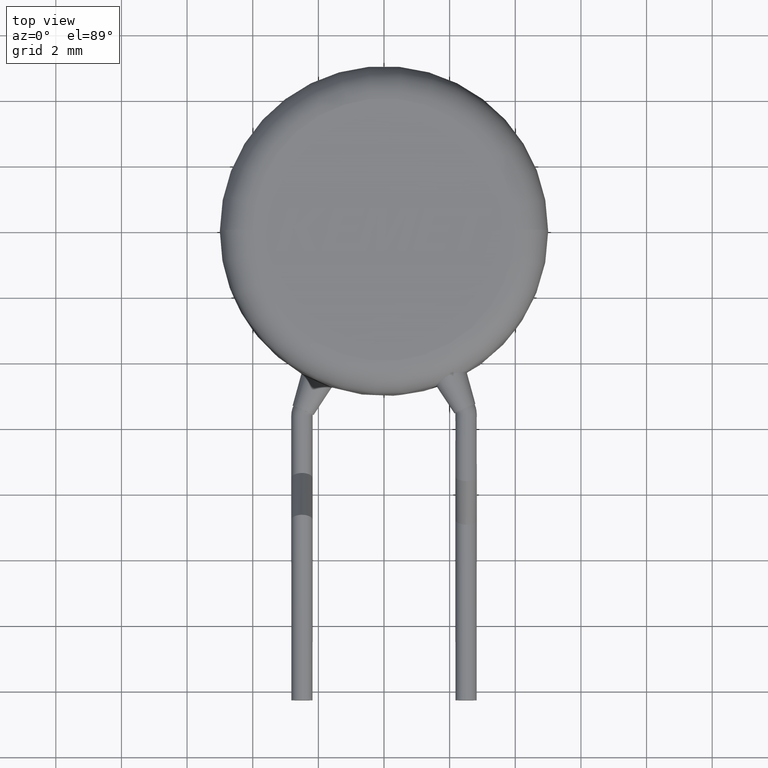
[diagram: clean part render]
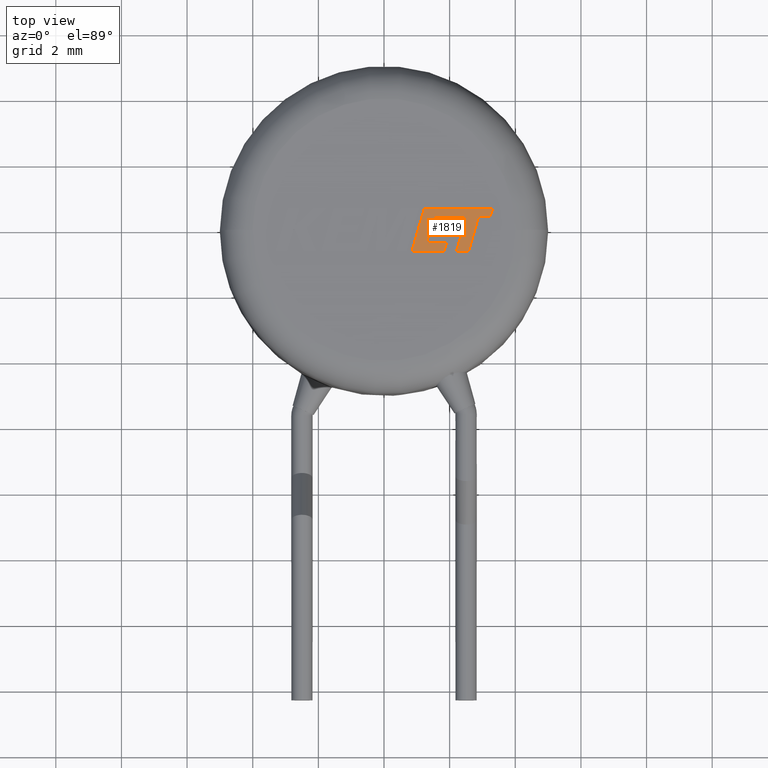
[diagram: same view with one face highlighted and labeled with its STEP entity id]
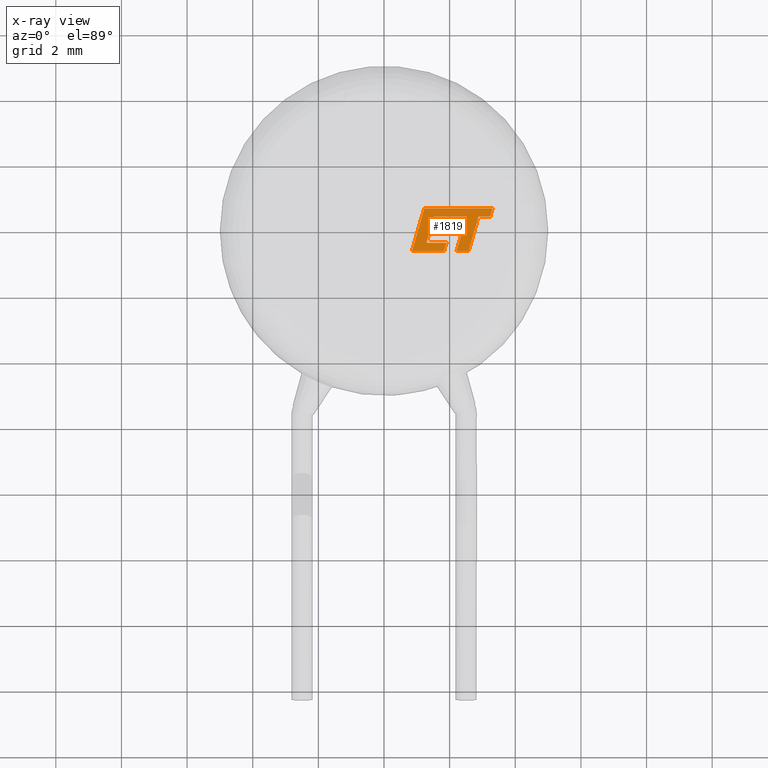
[diagram: x-ray of the same camera — body ghosted, the highlighted face saturated]
A machine part, top view. The second image highlights one B-rep face of the part: STEP entity #1819.
The next image is the same camera in x-ray: the body ghosted, the highlighted face saturated — about 0% of this face is hidden behind the body in this view.
In plain terms, the highlighted planar face has unit normal (0, 0, 1).
Its self-contained STEP definition (entity closure, byte-faithful):
#30 = CARTESIAN_POINT ( 'NONE',  ( 1.903833865856176400, -0.4033705582517734300, 5.002772128840647700 ) ) ;
#37 = VERTEX_POINT ( 'NONE', #895 ) ;
#40 = EDGE_CURVE ( 'NONE', #492, #1406, #352, .T. ) ;
#61 = DIRECTION ( 'NONE',  ( -0.2764273280489769600, -0.9610348236706635100, 0.0000000000000000000 ) ) ;
#70 = LINE ( 'NONE', #3984, #2187 ) ;
#124 = EDGE_CURVE ( 'NONE', #1125, #37, #1256, .T. ) ;
#174 = VERTEX_POINT ( 'NONE', #2975 ) ;
#201 = EDGE_CURVE ( 'NONE', #2771, #3972, #3504, .T. ) ;
#227 = EDGE_CURVE ( 'NONE', #3972, #3455, #4018, .T. ) ;
#228 = ORIENTED_EDGE ( 'NONE', *, *, #400, .T. ) ;
#233 = DIRECTION ( 'NONE',  ( 0.9999891854650020400, -0.004650693823678543800, 0.0000000000000000000 ) ) ;
#268 = VECTOR ( 'NONE', #1545, 1000.000000000000000 ) ;
#309 = EDGE_CURVE ( 'NONE', #1406, #2771, #1619, .T. ) ;
#352 = LINE ( 'NONE', #2183, #3609 ) ;
#400 = EDGE_CURVE ( 'NONE', #37, #3123, #3493, .T. ) ;
#452 = LINE ( 'NONE', #527, #4145 ) ;
#492 = VERTEX_POINT ( 'NONE', #3329 ) ;
#506 = VECTOR ( 'NONE', #1326, 1000.000000000000000 ) ;
#527 = CARTESIAN_POINT ( 'NONE',  ( 2.881275298532139000, 0.3958430061791437000, 5.002772128840647700 ) ) ;
#552 = DIRECTION ( 'NONE',  ( 0.0000000000000000000, 0.0000000000000000000, 1.000000000000000000 ) ) ;
#595 = LINE ( 'NONE', #2227, #1294 ) ;
#654 = CARTESIAN_POINT ( 'NONE',  ( 1.524181905327295100, 0.3993464793695716800, 5.002772128840647700 ) ) ;
#757 = AXIS2_PLACEMENT_3D ( 'NONE', #2483, #552, #2808 ) ;
#761 = CARTESIAN_POINT ( 'NONE',  ( 1.903833865856176400, -0.4033705582517734300, 5.002772128840647700 ) ) ;
#783 = VECTOR ( 'NONE', #2332, 1000.000000000000000 ) ;
#809 = LINE ( 'NONE', #3289, #506 ) ;
#815 = EDGE_CURVE ( 'NONE', #3853, #492, #1218, .T. ) ;
#838 = VERTEX_POINT ( 'NONE', #1624 ) ;
#866 = CARTESIAN_POINT ( 'NONE',  ( 0.8546126124578451400, -0.6500008832987451700, 5.002772128840647700 ) ) ;
#874 = EDGE_CURVE ( 'NONE', #1848, #1497, #1492, .T. ) ;
#895 = CARTESIAN_POINT ( 'NONE',  ( 1.293725094292476500, -0.4033705582517734300, 5.002772128840647700 ) ) ;
#977 = ORIENTED_EDGE ( 'NONE', *, *, #3081, .T. ) ;
#994 = CARTESIAN_POINT ( 'NONE',  ( 2.580670205470432700, -0.6500008832987448400, 5.002772128840647700 ) ) ;
#1028 = CARTESIAN_POINT ( 'NONE',  ( 2.211461668950883000, -0.6500008832987450600, 5.002772128840647700 ) ) ;
#1037 = EDGE_CURVE ( 'NONE', #1750, #1340, #70, .T. ) ;
#1070 = LINE ( 'NONE', #4027, #3261 ) ;
#1125 = VERTEX_POINT ( 'NONE', #761 ) ;
#1191 = VERTEX_POINT ( 'NONE', #3481 ) ;
#1198 = ORIENTED_EDGE ( 'NONE', *, *, #2908, .T. ) ;
#1218 = LINE ( 'NONE', #654, #1910 ) ;
#1225 = DIRECTION ( 'NONE',  ( 1.000000000000000000, 0.0000000000000000000, 0.0000000000000000000 ) ) ;
#1248 = FACE_OUTER_BOUND ( 'NONE', #1885, .T. ) ;
#1256 = LINE ( 'NONE', #30, #2712 ) ;
#1294 = VECTOR ( 'NONE', #3103, 1000.000000000000000 ) ;
#1295 = CARTESIAN_POINT ( 'NONE',  ( 2.010246445143765800, 0.1582728440775656400, 5.002772128840647700 ) ) ;
#1312 = CARTESIAN_POINT ( 'NONE',  ( 1.293725094292476500, -0.4033705582517734300, 5.002772128840647700 ) ) ;
#1326 = DIRECTION ( 'NONE',  ( 0.2746918797667242100, 0.9615323037684295700, 0.0000000000000000000 ) ) ;
#1333 = ORIENTED_EDGE ( 'NONE', *, *, #227, .T. ) ;
#1340 = VERTEX_POINT ( 'NONE', #3468 ) ;
#1406 = VERTEX_POINT ( 'NONE', #2856 ) ;
#1482 = CARTESIAN_POINT ( 'NONE',  ( 1.227415264243417100, 0.6460950318606388800, 5.002772128840647700 ) ) ;
#1492 = LINE ( 'NONE', #1295, #3437 ) ;
#1497 = VERTEX_POINT ( 'NONE', #4178 ) ;
#1498 = DIRECTION ( 'NONE',  ( 0.9999999968487352000, -7.938847109726309400E-005, 0.0000000000000000000 ) ) ;
#1545 = DIRECTION ( 'NONE',  ( 0.2762033010288721400, 0.9610992334305309400, 0.0000000000000000000 ) ) ;
#1560 = ORIENTED_EDGE ( 'NONE', *, *, #2903, .T. ) ;
#1619 = LINE ( 'NONE', #1881, #1713 ) ;
#1624 = CARTESIAN_POINT ( 'NONE',  ( 3.308060600162075400, 0.6460950318606393200, 5.002772128840647700 ) ) ;
#1709 = LINE ( 'NONE', #3412, #3303 ) ;
#1713 = VECTOR ( 'NONE', #2540, 999.9999999999998900 ) ;
#1744 = ORIENTED_EDGE ( 'NONE', *, *, #874, .T. ) ;
#1750 = VERTEX_POINT ( 'NONE', #1482 ) ;
#1783 = CARTESIAN_POINT ( 'NONE',  ( 3.236134399099432900, 0.3958148344576058500, 5.002772128840647700 ) ) ;
#1819 = ADVANCED_FACE ( 'NONE', ( #1248 ), #1872, .T. ) ;
#1848 = VERTEX_POINT ( 'NONE', #2647 ) ;
#1849 = ORIENTED_EDGE ( 'NONE', *, *, #815, .T. ) ;
#1872 = PLANE ( 'NONE',  #757 ) ;
#1881 = CARTESIAN_POINT ( 'NONE',  ( 2.512153462137105100, 0.3958430061823774400, 5.002772128840647700 ) ) ;
#1883 = CARTESIAN_POINT ( 'NONE',  ( 1.524181905327295100, 0.3993464793695716800, 5.002772128840647700 ) ) ;
#1885 = EDGE_LOOP ( 'NONE', ( #1849, #2018, #4072, #3327, #1333, #3560, #1198, #2561, #2491, #1560, #2762, #2650, #228, #3942, #3576, #1744, #977 ) ) ;
#1910 = VECTOR ( 'NONE', #3264, 1000.000000000000100 ) ;
#1933 = DIRECTION ( 'NONE',  ( -1.000000000000000000, 0.0000000000000000000, 0.0000000000000000000 ) ) ;
#2018 = ORIENTED_EDGE ( 'NONE', *, *, #40, .T. ) ;
#2050 = CARTESIAN_POINT ( 'NONE',  ( 2.580670205470432700, -0.6500008832987448400, 5.002772128840647700 ) ) ;
#2156 = DIRECTION ( 'NONE',  ( 1.000000000000000000, 2.372545677633579800E-016, 0.0000000000000000000 ) ) ;
#2183 = CARTESIAN_POINT ( 'NONE',  ( 2.118125044707421800, 0.3976755315275807300, 5.002772128840647700 ) ) ;
#2187 = VECTOR ( 'NONE', #61, 1000.000000000000100 ) ;
#2227 = CARTESIAN_POINT ( 'NONE',  ( 1.833851102246887300, -0.6500008832987450600, 5.002772128840647700 ) ) ;
#2332 = DIRECTION ( 'NONE',  ( 1.000000000000000000, 4.195078239924725600E-016, 0.0000000000000000000 ) ) ;
#2402 = DIRECTION ( 'NONE',  ( 0.2793947940814913700, 0.9601763114346036900, 0.0000000000000000000 ) ) ;
#2467 = EDGE_CURVE ( 'NONE', #174, #1848, #809, .T. ) ;
#2483 = CARTESIAN_POINT ( 'NONE',  ( -0.05394957496046050300, -0.1657095736357620500, 5.002772128840647700 ) ) ;
#2491 = ORIENTED_EDGE ( 'NONE', *, *, #1037, .T. ) ;
#2526 = EDGE_CURVE ( 'NONE', #3455, #1191, #452, .T. ) ;
#2540 = DIRECTION ( 'NONE',  ( -0.2763173343569930700, -0.9610664548998918400, 0.0000000000000000000 ) ) ;
#2561 = ORIENTED_EDGE ( 'NONE', *, *, #2934, .T. ) ;
#2647 = CARTESIAN_POINT ( 'NONE',  ( 2.010246445143765800, 0.1582728440775656400, 5.002772128840647700 ) ) ;
#2650 = ORIENTED_EDGE ( 'NONE', *, *, #124, .T. ) ;
#2712 = VECTOR ( 'NONE', #1933, 1000.000000000000000 ) ;
#2762 = ORIENTED_EDGE ( 'NONE', *, *, #4002, .T. ) ;
#2771 = VERTEX_POINT ( 'NONE', #3605 ) ;
#2808 = DIRECTION ( 'NONE',  ( 1.000000000000000000, 0.0000000000000000000, 0.0000000000000000000 ) ) ;
#2815 = CARTESIAN_POINT ( 'NONE',  ( 1.385674516554936700, -0.08128747996182829300, 5.002772128840647700 ) ) ;
#2856 = CARTESIAN_POINT ( 'NONE',  ( 2.512153462137105100, 0.3958430061823774400, 5.002772128840647700 ) ) ;
#2903 = EDGE_CURVE ( 'NONE', #1340, #3067, #3417, .T. ) ;
#2908 = EDGE_CURVE ( 'NONE', #1191, #838, #3162, .T. ) ;
#2934 = EDGE_CURVE ( 'NONE', #838, #1750, #1070, .T. ) ;
#2975 = CARTESIAN_POINT ( 'NONE',  ( 1.941808520104738600, -0.08128747996182829300, 5.002772128840647700 ) ) ;
#3026 = DIRECTION ( 'NONE',  ( 0.2762437428917322600, 0.9610876102172821700, 0.0000000000000000000 ) ) ;
#3035 = DIRECTION ( 'NONE',  ( -1.000000000000000000, -1.384790283657969200E-016, 0.0000000000000000000 ) ) ;
#3067 = VERTEX_POINT ( 'NONE', #4067 ) ;
#3081 = EDGE_CURVE ( 'NONE', #1497, #3853, #1709, .T. ) ;
#3103 = DIRECTION ( 'NONE',  ( 0.2729786930695146100, 0.9620200793798743300, 0.0000000000000000000 ) ) ;
#3123 = VERTEX_POINT ( 'NONE', #3379 ) ;
#3137 = VECTOR ( 'NONE', #3026, 1000.000000000000100 ) ;
#3162 = LINE ( 'NONE', #1783, #268 ) ;
#3190 = LINE ( 'NONE', #2815, #3283 ) ;
#3261 = VECTOR ( 'NONE', #3035, 1000.000000000000000 ) ;
#3264 = DIRECTION ( 'NONE',  ( 0.9999960426590095400, -0.002813301676022934900, 0.0000000000000000000 ) ) ;
#3271 = DIRECTION ( 'NONE',  ( 0.2745159998572679300, 0.9615825319869140100, 0.0000000000000000000 ) ) ;
#3279 = VECTOR ( 'NONE', #3271, 1000.000000000000000 ) ;
#3283 = VECTOR ( 'NONE', #1225, 1000.000000000000000 ) ;
#3289 = CARTESIAN_POINT ( 'NONE',  ( 1.941808520104738600, -0.08128747996182829300, 5.002772128840647700 ) ) ;
#3303 = VECTOR ( 'NONE', #2402, 1000.000000000000000 ) ;
#3327 = ORIENTED_EDGE ( 'NONE', *, *, #201, .T. ) ;
#3329 = CARTESIAN_POINT ( 'NONE',  ( 2.118125044707421800, 0.3976755315275807300, 5.002772128840647700 ) ) ;
#3379 = CARTESIAN_POINT ( 'NONE',  ( 1.385674516554936700, -0.08128747996182829300, 5.002772128840647700 ) ) ;
#3412 = CARTESIAN_POINT ( 'NONE',  ( 1.454033623299538300, 0.1582728440775656400, 5.002772128840647700 ) ) ;
#3414 = CARTESIAN_POINT ( 'NONE',  ( 2.881275298532139000, 0.3958430061791437000, 5.002772128840647700 ) ) ;
#3417 = LINE ( 'NONE', #866, #4041 ) ;
#3437 = VECTOR ( 'NONE', #3569, 1000.000000000000000 ) ;
#3455 = VERTEX_POINT ( 'NONE', #3414 ) ;
#3468 = CARTESIAN_POINT ( 'NONE',  ( 0.8546126124578451400, -0.6500008832987451700, 5.002772128840647700 ) ) ;
#3481 = CARTESIAN_POINT ( 'NONE',  ( 3.236134399099432900, 0.3958148344576058500, 5.002772128840647700 ) ) ;
#3493 = LINE ( 'NONE', #1312, #3279 ) ;
#3504 = LINE ( 'NONE', #1028, #783 ) ;
#3560 = ORIENTED_EDGE ( 'NONE', *, *, #2526, .T. ) ;
#3569 = DIRECTION ( 'NONE',  ( -1.000000000000000000, 0.0000000000000000000, 0.0000000000000000000 ) ) ;
#3576 = ORIENTED_EDGE ( 'NONE', *, *, #2467, .T. ) ;
#3605 = CARTESIAN_POINT ( 'NONE',  ( 2.211461668950883000, -0.6500008832987450600, 5.002772128840647700 ) ) ;
#3609 = VECTOR ( 'NONE', #233, 1000.000000000000100 ) ;
#3853 = VERTEX_POINT ( 'NONE', #1883 ) ;
#3942 = ORIENTED_EDGE ( 'NONE', *, *, #4070, .T. ) ;
#3972 = VERTEX_POINT ( 'NONE', #994 ) ;
#3984 = CARTESIAN_POINT ( 'NONE',  ( 1.227415264243417100, 0.6460950318606388800, 5.002772128840647700 ) ) ;
#4002 = EDGE_CURVE ( 'NONE', #3067, #1125, #595, .T. ) ;
#4018 = LINE ( 'NONE', #2050, #3137 ) ;
#4027 = CARTESIAN_POINT ( 'NONE',  ( 3.308060600162075400, 0.6460950318606393200, 5.002772128840647700 ) ) ;
#4041 = VECTOR ( 'NONE', #2156, 1000.000000000000000 ) ;
#4067 = CARTESIAN_POINT ( 'NONE',  ( 1.833851102246887300, -0.6500008832987450600, 5.002772128840647700 ) ) ;
#4070 = EDGE_CURVE ( 'NONE', #3123, #174, #3190, .T. ) ;
#4072 = ORIENTED_EDGE ( 'NONE', *, *, #309, .T. ) ;
#4145 = VECTOR ( 'NONE', #1498, 1000.000000000000200 ) ;
#4178 = CARTESIAN_POINT ( 'NONE',  ( 1.454033623299538300, 0.1582728440775656400, 5.002772128840647700 ) ) ;